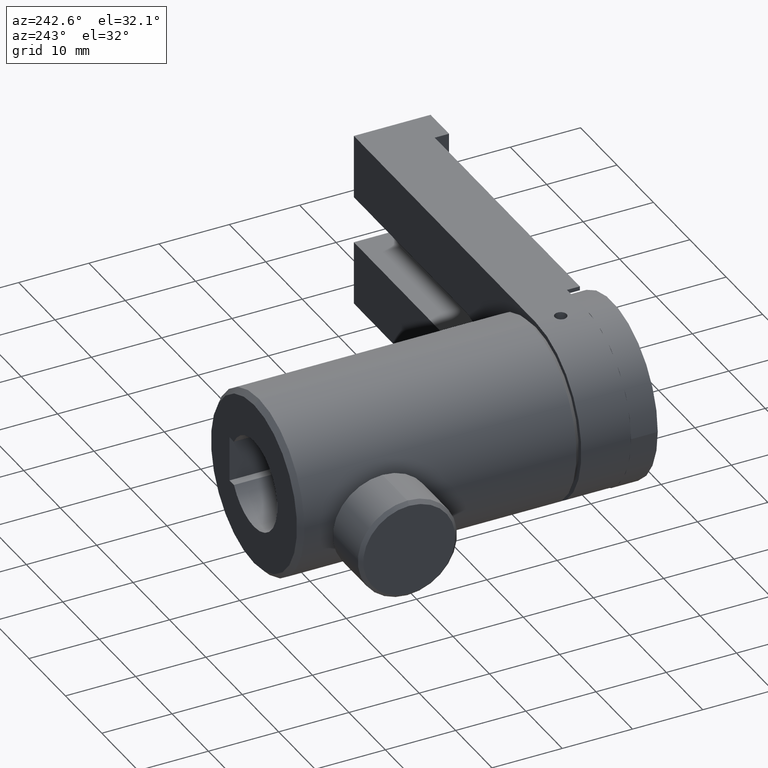
[diagram: clean part render]
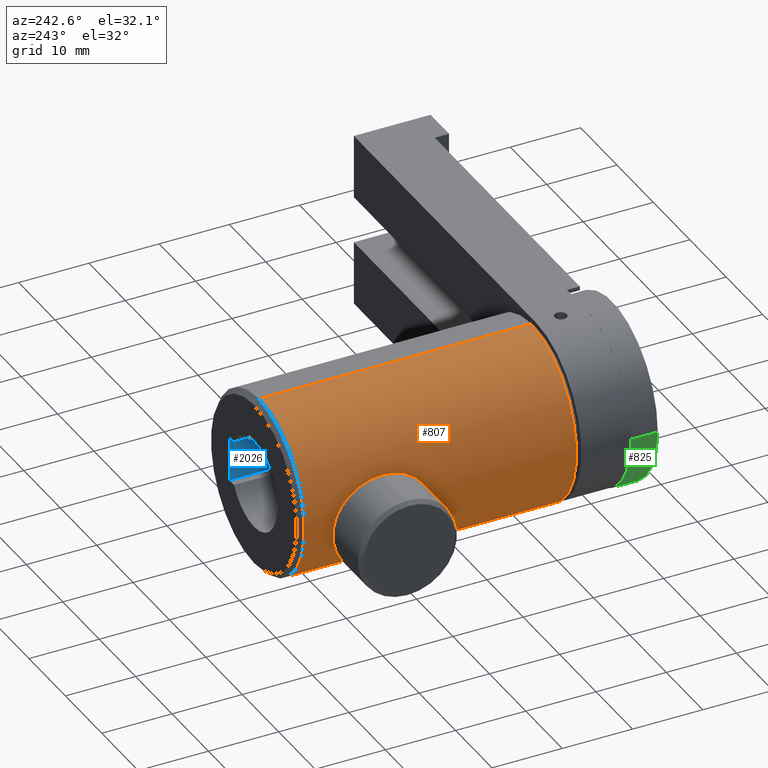
[diagram: same view with three faces highlighted in distinct colors, each labeled with its STEP entity id]
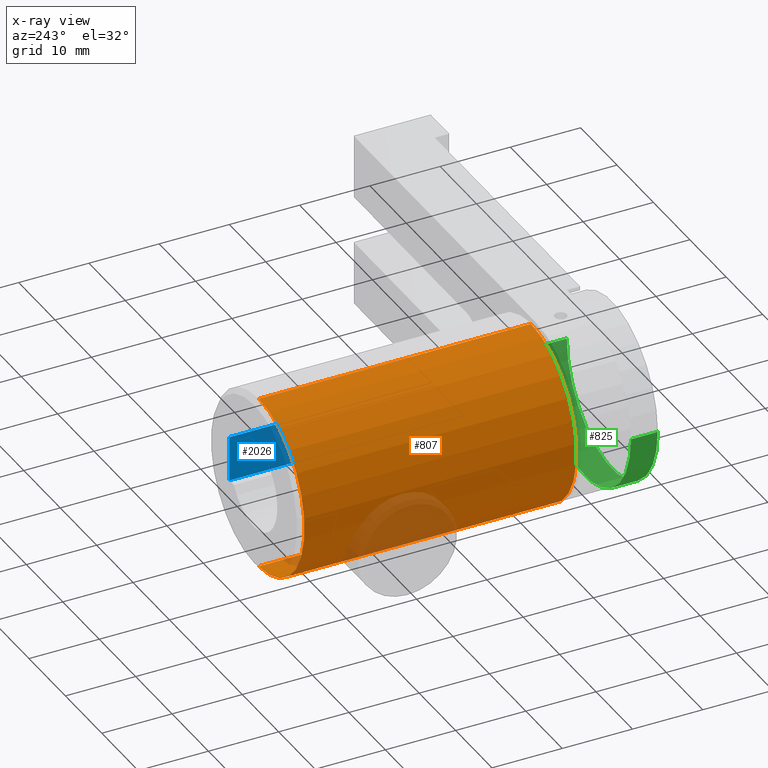
[diagram: x-ray of the same camera — body ghosted, the three highlighted faces saturated]
A machine part, auxiliary view with three faces highlighted in distinct colors.
The next image is the same camera in x-ray (body ghosted, the three faces saturated) — at least one of them is partly hidden behind the body in this view.
Their STEP definitions:

[orange] entity #807 — the highlighted cylindrical surface (partial cylindrical patch) has radius 12.4968 mm, axis along (-0, -1, -0).
#6 = CARTESIAN_POINT ( 'NONE',  ( 4.123066643891380800, 45.82713478776489100, -1.839923381405735800E-015 ) ) ;
#62 = ORIENTED_EDGE ( 'NONE', *, *, #590, .F. ) ;
#149 = VERTEX_POINT ( 'NONE', #3350 ) ;
#180 = CARTESIAN_POINT ( 'NONE',  ( 4.123066643891380800, 6.398134787764894900, -1.839923381405735800E-015 ) ) ;
#229 = CIRCLE ( 'NONE', #3751, 12.49680000000000600 ) ;
#497 = DIRECTION ( 'NONE',  ( -0.0000000000000000000, -1.000000000000000000, -0.0000000000000000000 ) ) ;
#555 = EDGE_CURVE ( 'NONE', #2422, #2937, #2731, .T. ) ;
#590 = EDGE_CURVE ( 'NONE', #149, #2937, #3152, .T. ) ;
#807 = ADVANCED_FACE ( 'NONE', ( #2928 ), #2832, .T. ) ;
#892 = EDGE_LOOP ( 'NONE', ( #62, #3669, #1537, #2665 ) ) ;
#1057 = VECTOR ( 'NONE', #2663, 1000.000000000000000 ) ;
#1091 = CARTESIAN_POINT ( 'NONE',  ( 4.123066643891380800, 45.12713478776489500, -1.839923381405735800E-015 ) ) ;
#1154 = VECTOR ( 'NONE', #497, 1000.000000000000000 ) ;
#1217 = DIRECTION ( 'NONE',  ( -0.0000000000000000000, -1.000000000000000000, -0.0000000000000000000 ) ) ;
#1436 = CARTESIAN_POINT ( 'NONE',  ( 4.123066643891382600, 6.398134787764894900, 12.49680000000000400 ) ) ;
#1537 = ORIENTED_EDGE ( 'NONE', *, *, #2969, .T. ) ;
#1609 = LINE ( 'NONE', #3811, #1057 ) ;
#1765 = CARTESIAN_POINT ( 'NONE',  ( 4.123066643891380800, 45.12713478776489500, -12.49680000000000700 ) ) ;
#2255 = CARTESIAN_POINT ( 'NONE',  ( 4.123066643891382600, 45.82713478776489100, 12.49680000000000400 ) ) ;
#2422 = VERTEX_POINT ( 'NONE', #3170 ) ;
#2426 = DIRECTION ( 'NONE',  ( 0.0000000000000000000, 0.0000000000000000000, -1.000000000000000000 ) ) ;
#2516 = AXIS2_PLACEMENT_3D ( 'NONE', #6, #1217, #2426 ) ;
#2663 = DIRECTION ( 'NONE',  ( -0.0000000000000000000, -1.000000000000000000, -0.0000000000000000000 ) ) ;
#2665 = ORIENTED_EDGE ( 'NONE', *, *, #555, .T. ) ;
#2678 = AXIS2_PLACEMENT_3D ( 'NONE', #180, #3181, #3754 ) ;
#2731 = CIRCLE ( 'NONE', #2678, 12.49680000000000600 ) ;
#2832 = CYLINDRICAL_SURFACE ( 'NONE', #2516, 12.49680000000000600 ) ;
#2911 = DIRECTION ( 'NONE',  ( 0.0000000000000000000, 0.0000000000000000000, 1.000000000000000000 ) ) ;
#2928 = FACE_OUTER_BOUND ( 'NONE', #892, .T. ) ;
#2937 = VERTEX_POINT ( 'NONE', #1436 ) ;
#2944 = VERTEX_POINT ( 'NONE', #1765 ) ;
#2969 = EDGE_CURVE ( 'NONE', #2944, #2422, #1609, .T. ) ;
#3152 = LINE ( 'NONE', #2255, #1154 ) ;
#3170 = CARTESIAN_POINT ( 'NONE',  ( 4.123066643891380800, 6.398134787764894900, -12.49680000000000700 ) ) ;
#3181 = DIRECTION ( 'NONE',  ( -0.0000000000000000000, 1.000000000000000000, -0.0000000000000000000 ) ) ;
#3330 = EDGE_CURVE ( 'NONE', #149, #2944, #229, .T. ) ;
#3350 = CARTESIAN_POINT ( 'NONE',  ( 4.123066643891382600, 45.12713478776489500, 12.49680000000000400 ) ) ;
#3446 = DIRECTION ( 'NONE',  ( 0.0000000000000000000, -1.000000000000000000, 0.0000000000000000000 ) ) ;
#3669 = ORIENTED_EDGE ( 'NONE', *, *, #3330, .T. ) ;
#3751 = AXIS2_PLACEMENT_3D ( 'NONE', #1091, #3446, #2911 ) ;
#3754 = DIRECTION ( 'NONE',  ( 0.0000000000000000000, 0.0000000000000000000, 1.000000000000000000 ) ) ;
#3811 = CARTESIAN_POINT ( 'NONE',  ( 4.123066643891380800, 45.82713478776489100, -12.49680000000000700 ) ) ;

[blue] entity #2026 — the highlighted planar face has unit normal (-1, 0, 0).
#3 = DIRECTION ( 'NONE',  ( -1.000000000000000000, 0.0000000000000000000, 0.0000000000000000000 ) ) ;
#178 = VERTEX_POINT ( 'NONE', #1593 ) ;
#217 = VECTOR ( 'NONE', #1085, 1000.000000000000000 ) ;
#538 = ORIENTED_EDGE ( 'NONE', *, *, #2637, .F. ) ;
#571 = EDGE_CURVE ( 'NONE', #1529, #178, #3557, .T. ) ;
#684 = DIRECTION ( 'NONE',  ( -0.0000000000000000000, -1.000000000000000000, -0.0000000000000000000 ) ) ;
#695 = VECTOR ( 'NONE', #1995, 1000.000000000000000 ) ;
#759 = CARTESIAN_POINT ( 'NONE',  ( 10.85406664389138400, 5.698134787764893800, 3.225799999999997300 ) ) ;
#1085 = DIRECTION ( 'NONE',  ( -0.0000000000000000000, -0.0000000000000000000, -1.000000000000000000 ) ) ;
#1529 = VERTEX_POINT ( 'NONE', #3655 ) ;
#1589 = LINE ( 'NONE', #2539, #1911 ) ;
#1593 = CARTESIAN_POINT ( 'NONE',  ( 10.85406664389138400, 45.82713478776489100, -3.225800000000002700 ) ) ;
#1623 = EDGE_CURVE ( 'NONE', #2428, #2232, #3307, .T. ) ;
#1625 = ORIENTED_EDGE ( 'NONE', *, *, #1623, .F. ) ;
#1661 = CARTESIAN_POINT ( 'NONE',  ( 10.85406664389138400, 45.82713478776489100, -3.225800000000002700 ) ) ;
#1725 = DIRECTION ( 'NONE',  ( -0.0000000000000000000, -1.000000000000000000, -0.0000000000000000000 ) ) ;
#1776 = CARTESIAN_POINT ( 'NONE',  ( 10.85406664389138400, 45.82713478776489100, -3.225800000000002700 ) ) ;
#1841 = EDGE_CURVE ( 'NONE', #178, #2232, #1589, .T. ) ;
#1906 = CARTESIAN_POINT ( 'NONE',  ( 10.85406664389138400, 5.698134787764893800, -3.225800000000002700 ) ) ;
#1911 = VECTOR ( 'NONE', #1725, 1000.000000000000000 ) ;
#1973 = CARTESIAN_POINT ( 'NONE',  ( 10.85406664389138400, 5.698134787764893800, -3.225800000000002700 ) ) ;
#1995 = DIRECTION ( 'NONE',  ( -0.0000000000000000000, -0.0000000000000000000, -1.000000000000000000 ) ) ;
#2026 = ADVANCED_FACE ( 'NONE', ( #3375 ), #3542, .T. ) ;
#2232 = VERTEX_POINT ( 'NONE', #1906 ) ;
#2375 = DIRECTION ( 'NONE',  ( 0.0000000000000000000, 0.0000000000000000000, 1.000000000000000000 ) ) ;
#2428 = VERTEX_POINT ( 'NONE', #759 ) ;
#2535 = AXIS2_PLACEMENT_3D ( 'NONE', #1776, #3, #2375 ) ;
#2539 = CARTESIAN_POINT ( 'NONE',  ( 10.85406664389138400, 45.82713478776489100, -3.225800000000002700 ) ) ;
#2637 = EDGE_CURVE ( 'NONE', #1529, #2428, #3372, .T. ) ;
#2938 = EDGE_LOOP ( 'NONE', ( #1625, #538, #3707, #3065 ) ) ;
#3041 = CARTESIAN_POINT ( 'NONE',  ( 10.85406664389138400, 45.82713478776489100, 3.225799999999997300 ) ) ;
#3065 = ORIENTED_EDGE ( 'NONE', *, *, #1841, .T. ) ;
#3307 = LINE ( 'NONE', #1973, #217 ) ;
#3372 = LINE ( 'NONE', #3041, #3600 ) ;
#3375 = FACE_OUTER_BOUND ( 'NONE', #2938, .T. ) ;
#3542 = PLANE ( 'NONE',  #2535 ) ;
#3557 = LINE ( 'NONE', #1661, #695 ) ;
#3600 = VECTOR ( 'NONE', #684, 1000.000000000000000 ) ;
#3655 = CARTESIAN_POINT ( 'NONE',  ( 10.85406664389138400, 45.82713478776489100, 3.225799999999997300 ) ) ;
#3707 = ORIENTED_EDGE ( 'NONE', *, *, #571, .T. ) ;

[green] entity #825 — the highlighted cylindrical surface (partial cylindrical patch) has radius 12.4968 mm, axis along (0, 1, 0).
#19 = DIRECTION ( 'NONE',  ( 0.0000000000000000000, 1.000000000000000000, 0.0000000000000000000 ) ) ;
#125 = AXIS2_PLACEMENT_3D ( 'NONE', #1790, #19, #2077 ) ;
#303 = DIRECTION ( 'NONE',  ( 0.0000000000000000000, 1.000000000000000000, 0.0000000000000000000 ) ) ;
#444 = DIRECTION ( 'NONE',  ( 0.0000000000000000000, 1.000000000000000000, 0.0000000000000000000 ) ) ;
#457 = VERTEX_POINT ( 'NONE', #1613 ) ;
#592 = AXIS2_PLACEMENT_3D ( 'NONE', #3801, #303, #2670 ) ;
#687 = ORIENTED_EDGE ( 'NONE', *, *, #2027, .T. ) ;
#825 = ADVANCED_FACE ( 'NONE', ( #1238 ), #3004, .T. ) ;
#849 = ORIENTED_EDGE ( 'NONE', *, *, #2244, .F. ) ;
#1010 = CARTESIAN_POINT ( 'NONE',  ( 16.61986664389138100, 10.82893478776489400, 5.911793546216820800E-013 ) ) ;
#1041 = CARTESIAN_POINT ( 'NONE',  ( 4.123066643891380800, -1.363065212235106300, 1.457167719820518700E-013 ) ) ;
#1107 = AXIS2_PLACEMENT_3D ( 'NONE', #1041, #2810, #3115 ) ;
#1113 = CIRCLE ( 'NONE', #592, 12.49680000000000200 ) ;
#1200 = EDGE_LOOP ( 'NONE', ( #849, #687, #1732, #2043 ) ) ;
#1238 = FACE_OUTER_BOUND ( 'NONE', #1200, .T. ) ;
#1514 = CIRCLE ( 'NONE', #1107, 12.49680000000000200 ) ;
#1613 = CARTESIAN_POINT ( 'NONE',  ( -8.373733356108621400, -5.173065212235105300, -2.982153940456199100E-013 ) ) ;
#1732 = ORIENTED_EDGE ( 'NONE', *, *, #3645, .T. ) ;
#1790 = CARTESIAN_POINT ( 'NONE',  ( 4.123066643891380800, 10.82893478776489400, 1.457167719820518700E-013 ) ) ;
#1853 = CARTESIAN_POINT ( 'NONE',  ( -8.373733356108621400, 10.82893478776489400, -2.982153940456199100E-013 ) ) ;
#1964 = CARTESIAN_POINT ( 'NONE',  ( -8.373733356108621400, -1.363065212235106300, -2.982153940456199100E-013 ) ) ;
#2027 = EDGE_CURVE ( 'NONE', #3618, #457, #1113, .T. ) ;
#2043 = ORIENTED_EDGE ( 'NONE', *, *, #3202, .F. ) ;
#2077 = DIRECTION ( 'NONE',  ( -1.000000000000000000, 0.0000000000000000000, -3.552366734105304300E-014 ) ) ;
#2244 = EDGE_CURVE ( 'NONE', #3618, #3150, #3153, .T. ) ;
#2421 = CARTESIAN_POINT ( 'NONE',  ( 16.61986664389138100, -5.173065212235105300, 5.911793546216819800E-013 ) ) ;
#2430 = VERTEX_POINT ( 'NONE', #1964 ) ;
#2670 = DIRECTION ( 'NONE',  ( -1.000000000000000000, 0.0000000000000000000, -3.552366734105304300E-014 ) ) ;
#2693 = VECTOR ( 'NONE', #444, 1000.000000000000000 ) ;
#2810 = DIRECTION ( 'NONE',  ( 0.0000000000000000000, 1.000000000000000000, 0.0000000000000000000 ) ) ;
#2959 = VECTOR ( 'NONE', #3297, 1000.000000000000000 ) ;
#3004 = CYLINDRICAL_SURFACE ( 'NONE', #125, 12.49680000000000200 ) ;
#3044 = LINE ( 'NONE', #1853, #2959 ) ;
#3115 = DIRECTION ( 'NONE',  ( -1.000000000000000000, 0.0000000000000000000, -3.552366734105304300E-014 ) ) ;
#3150 = VERTEX_POINT ( 'NONE', #3622 ) ;
#3153 = LINE ( 'NONE', #1010, #2693 ) ;
#3202 = EDGE_CURVE ( 'NONE', #3150, #2430, #1514, .T. ) ;
#3297 = DIRECTION ( 'NONE',  ( 0.0000000000000000000, 1.000000000000000000, 0.0000000000000000000 ) ) ;
#3618 = VERTEX_POINT ( 'NONE', #2421 ) ;
#3622 = CARTESIAN_POINT ( 'NONE',  ( 16.61986664389138100, -1.363065212235106300, 5.911793546216819800E-013 ) ) ;
#3645 = EDGE_CURVE ( 'NONE', #457, #2430, #3044, .T. ) ;
#3801 = CARTESIAN_POINT ( 'NONE',  ( 4.123066643891380800, -5.173065212235105300, 1.457167719820518700E-013 ) ) ;